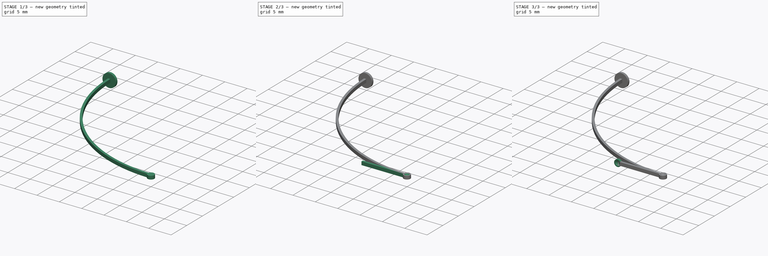
[diagram: build sequence overview — one tinted view per stage of 3, left to right]
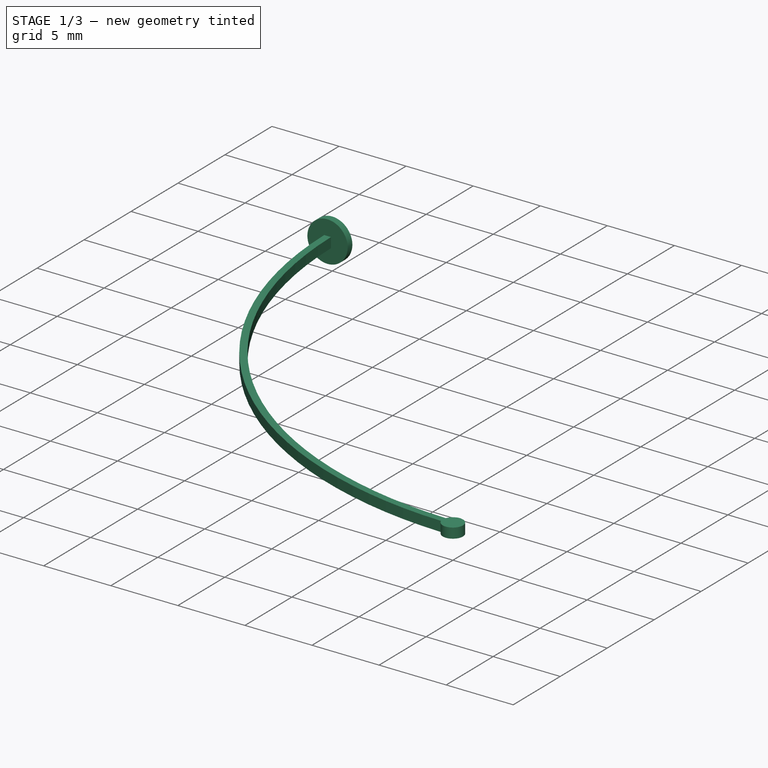
[diagram: stage 1 of 3 — iso view after this stage's code; geometry added in this stage tinted green]
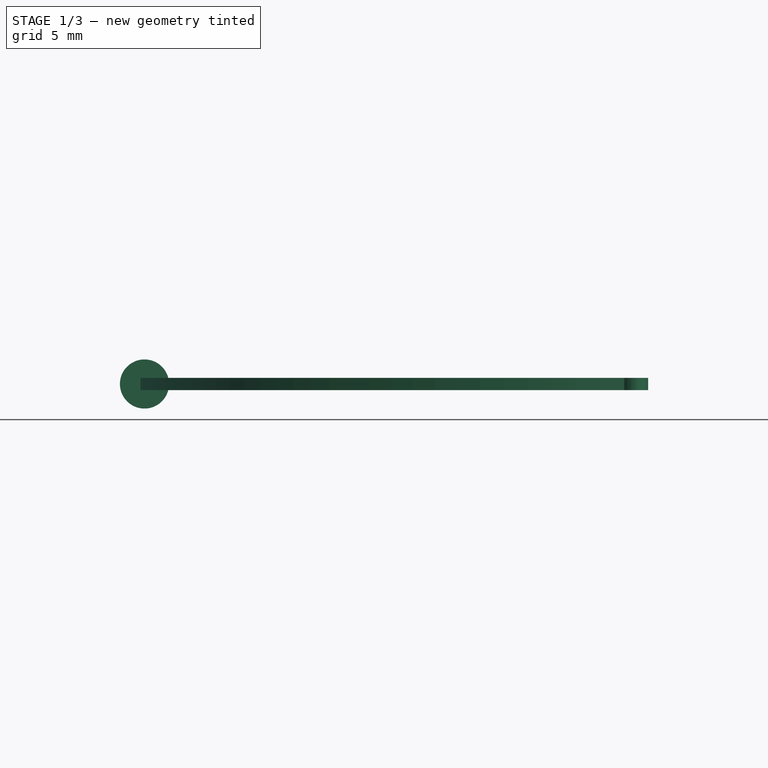
[diagram: stage 1 of 3 — front view after this stage's code; geometry added in this stage tinted green]
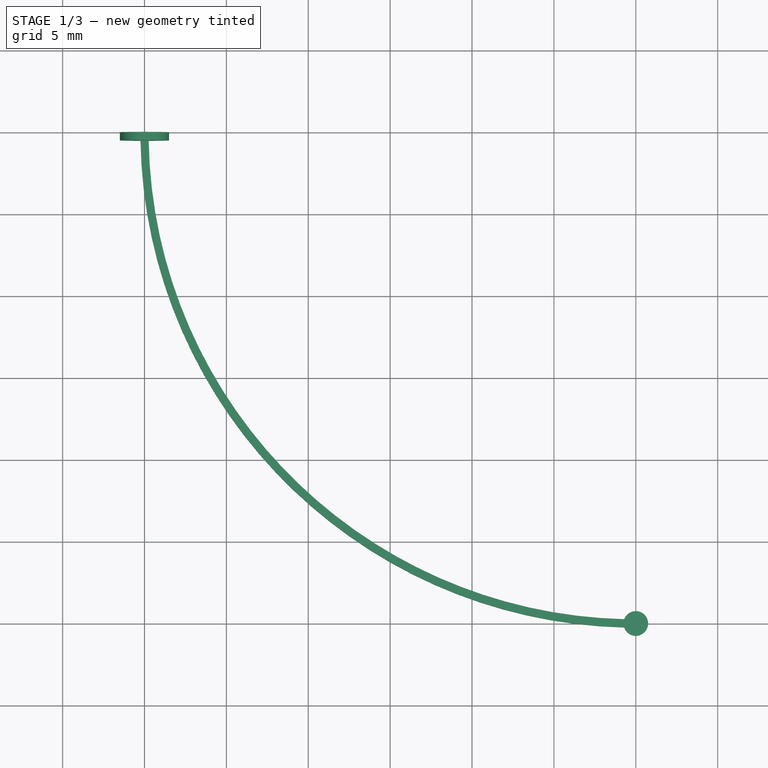
[diagram: stage 1 of 3 — top view after this stage's code; geometry added in this stage tinted green]
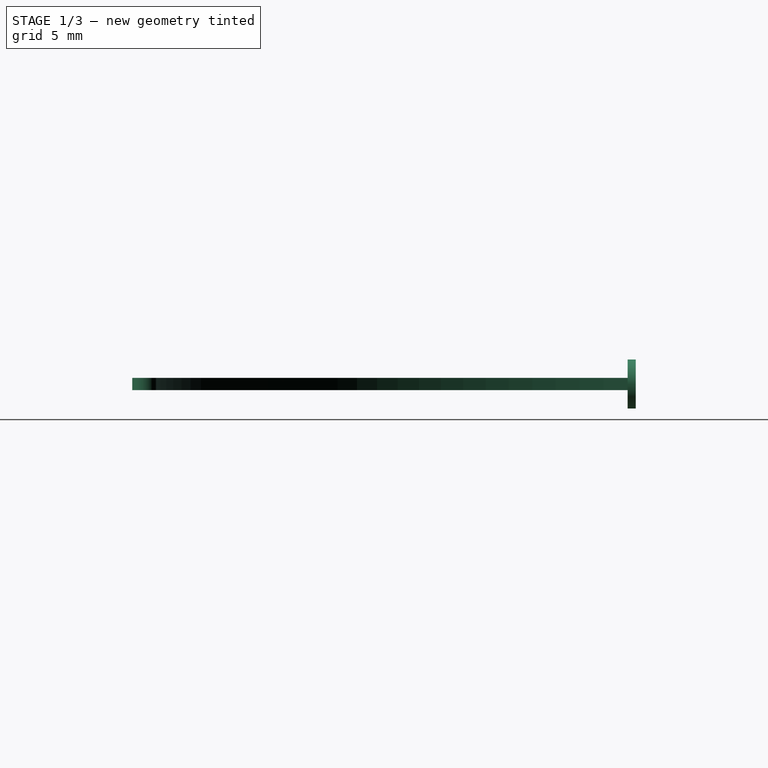
[diagram: stage 1 of 3 — right view after this stage's code; geometry added in this stage tinted green]
FCSTD DOCUMENT  (FreeCAD 0.20R29177 (Git))
Label: sla
License: All rights reserved
LicenseURL: http://en.wikipedia.org/wiki/All_rights_reserved
objects: Sketcher::SketchObject×4, PartDesign::Pad×4, PartDesign::Line×4, PartDesign::Point×2, PartDesign::SubtractiveSphere×2, Spreadsheet::Sheet×1, PartDesign::Plane×1, PartDesign::Body×1
note: 24 computed .brp shape members not serialized (recipe doc carries the construction recipe); baked Part::Feature solids carry a one-line shape summary decoded from their .brp

FEATURE [Spreadsheet::Sheet] Spreadsheet
  cells = A2=Design Parameters; A3=RefLength; B3(RefLength)==1mm; A4=ArmArcRadius; B4(ArmArcRadius)==30 * RefLength; A5=ArmWidth; B5(ArmWidth)==0.5 * RefLength; A6=ArmHeight; B6(ArmHeight)==0.75 * RefLength; A7=TipDatumPlaneOffsetX; B7(TipDatumPlaneOffsetX)==ArmArcRadius; A8=TipDatumPlaneOffsetY; B8(TipDatumPlaneOffsetY)==-ArmArcRadius; A9=ArmBaseDiameter; B9(ArmBaseDiameter)==3 * RefLength; A10=ArmBasePadLength; B10(ArmBasePadLength)==0.5 * RefLength; A11=BallDiameter; B11(BallDiameter)==1.25 * RefLength; A12=BallMargin; B12(BallMargin)==0.01 * RefLength; A13=BallCutoutDiameter; B13(BallCutoutDiameter)==BallDiameter + 2 * BallMargin; A14=BallDepth; B14(BallDepth)==0.25 * BallCutoutDiameter; A15=TipPlateDiameter; B15(TipPlateDiameter)==1.2 * BallDiameter; A16=TipPlateThickness; B16(TipPlateThickness)==ArmHeight; A17=BallCutoutCenterX; B17(BallCutoutCenterX)==ArmArcRadius; A18=BallCutoutCenterY; B18(BallCutoutCenterY)==-ArmArcRadius; A19=BallCutoutCenterZ; B19(BallCutoutCenterZ)==0.5 * ArmHeight + 0.5 * BallCutoutDiameter - BallDepth; A21=Ax4JointArmLength; B21(Ax4JointArmLength)==10 * RefLength; A22=Ax4JointPlateOffsetX; B22(Ax4JointPlateOffsetX)==ArmArcRadius - Ax4JointArmLength; A23=Ax4JointPlateOffsetY; B23(Ax4JointPlateOffsetY)==0 * RefLength; A24=Ax4JointPlateOffsetZ; B24(Ax4JointPlateOffsetZ)==ArmArcRadius; A25=Ax4BallCutoutCenterX; B25(Ax4BallCutoutCenterX)==ArmArcRadius - Ax4JointArmLength; A26=Ax4BallCutoutCenterY; B26(Ax4BallCutoutCenterY)==-(ArmArcRadius + 0.5 * ArmWidth - BallDepth + 0.5 * BallCutoutDiameter); A27=Ax4BallCutoutCenterZ; B27(Ax4BallCutoutCenterZ)==0 * RefLength
FEATURE [Sketcher::SketchObject] Sketch  label="ArmSketch"
  FullyConstrained = true
  MapMode = 5
  Support = -> [XY_Plane]
  expr: Constraints[16] = Spreadsheet.ArmWidth
  expr: Constraints[26] = Spreadsheet.TipPlateDiameter
  expr: Constraints[9] = Spreadsheet.ArmArcRadius
  sketch-geometry (10):
    g0: LineSegment StartX=-2.13e-14 StartY=4.41e-14 StartZ=0 EndX=-2.13e-14 EndY=-30 EndZ=0
    g1: LineSegment StartX=-2.13e-14 StartY=-30 StartZ=0 EndX=30 EndY=-30 EndZ=0
    g2: LineSegment StartX=-2.13e-14 StartY=4.41e-14 StartZ=0 EndX=30 EndY=4.41e-14 EndZ=0
    g3: LineSegment StartX=30 StartY=4.41e-14 StartZ=0 EndX=30 EndY=-30 EndZ=0
    g4: ArcOfCircle CenterX=30 CenterY=4.41e-14 CenterZ=0 NormalX=0 NormalY=0 NormalZ=1 AngleXU=0 Radius=30 StartAngle=3.14159 EndAngle=4.71239
    g5: LineSegment StartX=-0.25 StartY=4.41e-14 StartZ=0 EndX=-2.13e-14 EndY=4.41e-14 EndZ=0
    g6: LineSegment StartX=-2.13e-14 StartY=4.41e-14 StartZ=0 EndX=0.25 EndY=4.41e-14 EndZ=0
    g7: ArcOfCircle CenterX=30 CenterY=4.41e-14 CenterZ=0 NormalX=0 NormalY=0 NormalZ=1 AngleXU=0 Radius=30.25 StartAngle=3.14159 EndAngle=4.68892
    g8: ArcOfCircle CenterX=30 CenterY=4.41e-14 CenterZ=0 NormalX=0 NormalY=0 NormalZ=1 AngleXU=0 Radius=29.75 StartAngle=3.14159 EndAngle=4.68872
    g9: ArcOfCircle CenterX=30 CenterY=-30 CenterZ=0 NormalX=0 NormalY=0 NormalZ=1 AngleXU=0 Radius=0.75 StartAngle=3.46967 EndAngle=9.07313
  constraints (27):
    c: Vertical(g0)
    c: Coincident(g0,g1)
    c: Horizontal(g1)
    c: Horizontal(g2)
    c: Coincident(g2,g3)
    c: Vertical(g3)
    c: Coincident(g3,g1)
    c: Coincident(g4,g2)
    c: Coincident(g4,g1)
    c: Radius(g4) = 30
    c: Horizontal(g5)
    c: Coincident(g5,g6)
    c: Horizontal(g6)
    c: Equal(g5,g6)
    c: Coincident(g7,g2)
    c: Coincident(g8,g7)
    c: DistanceX(g5,g6) = 0.5
    c: Coincident(g2,g0)
    c: Coincident(g4,g0)
    c: Coincident(g0,g5)
    c: Coincident(g5,g-1)
    c: Coincident(g7,g5)
    c: Coincident(g8,g6)
    c: Coincident(g9,g1)
    c: Coincident(g9,g8)
    c: Coincident(g9,g7)
    c: Diameter(g9) = 1.5
FEATURE [PartDesign::Pad] Pad  label="ArmPad"
  Direction = (0,0,1)
  Length = 0.75
  Length2 = 10
  Midplane = true
  Profile = -> Sketch
  ReferenceAxis = -> Sketch [N_Axis]
  Type = 0
  expr: Length = Spreadsheet.ArmHeight
FEATURE [Sketcher::SketchObject] Sketch002  label="ArmBaseSketch"
  FullyConstrained = true
  MapMode = 5
  Placement = pos=(0,0,0) rot=(1,0,0;1.5708rad)
  Support = -> [XZ_Plane]
  expr: Constraints[1] = Spreadsheet.ArmBaseDiameter
  sketch-geometry (1):
    g0: Circle CenterX=0 CenterY=0 CenterZ=0 NormalX=0 NormalY=0 NormalZ=1 AngleXU=0 Radius=1.5
  constraints (2):
    c: Coincident(g0,g-1)
    c: Diameter(g0) = 3
FEATURE [PartDesign::Pad] Pad001  label="ArmBasePad"
  BaseFeature = -> Pad
  Direction = (0,-1,-2e-16)
  Length = 0.5
  Length2 = 10
  Profile = -> Sketch002
  ReferenceAxis = -> Sketch002 [N_Axis]
  Type = 0
  expr: Length = Spreadsheet.ArmBasePadLength
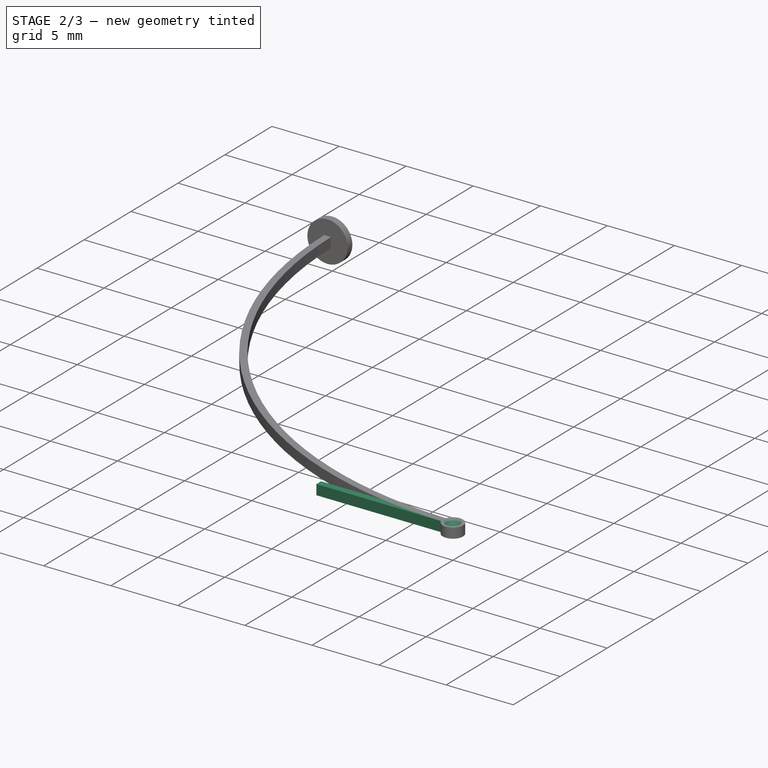
[diagram: stage 2 of 3 — iso view after this stage's code; geometry added in this stage tinted green]
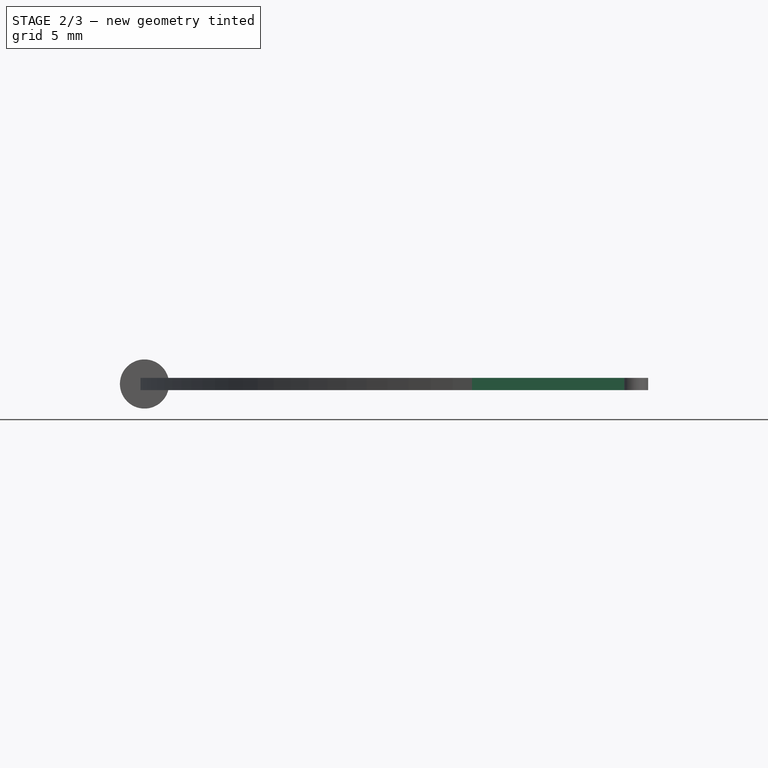
[diagram: stage 2 of 3 — front view after this stage's code; geometry added in this stage tinted green]
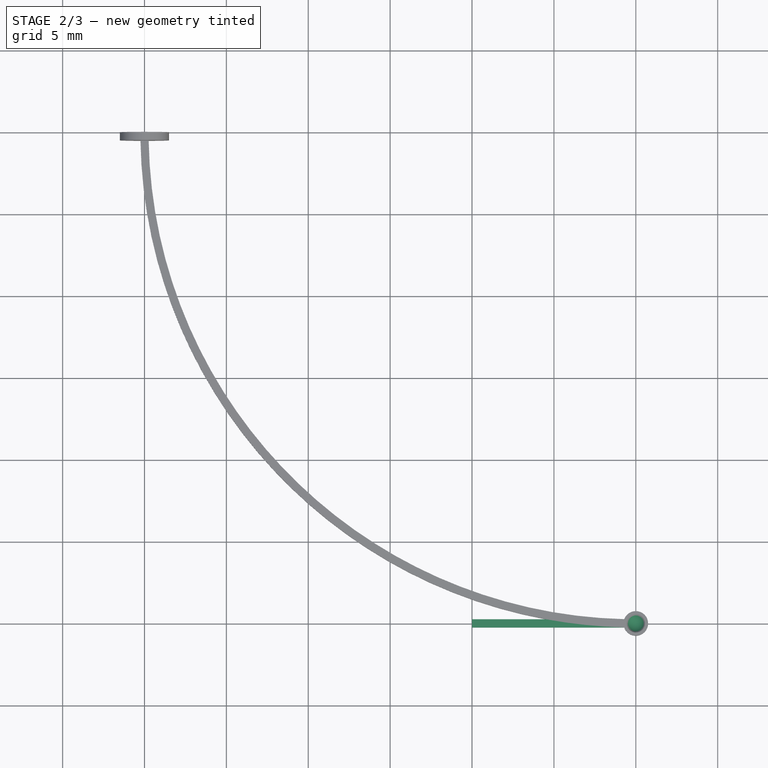
[diagram: stage 2 of 3 — top view after this stage's code; geometry added in this stage tinted green]
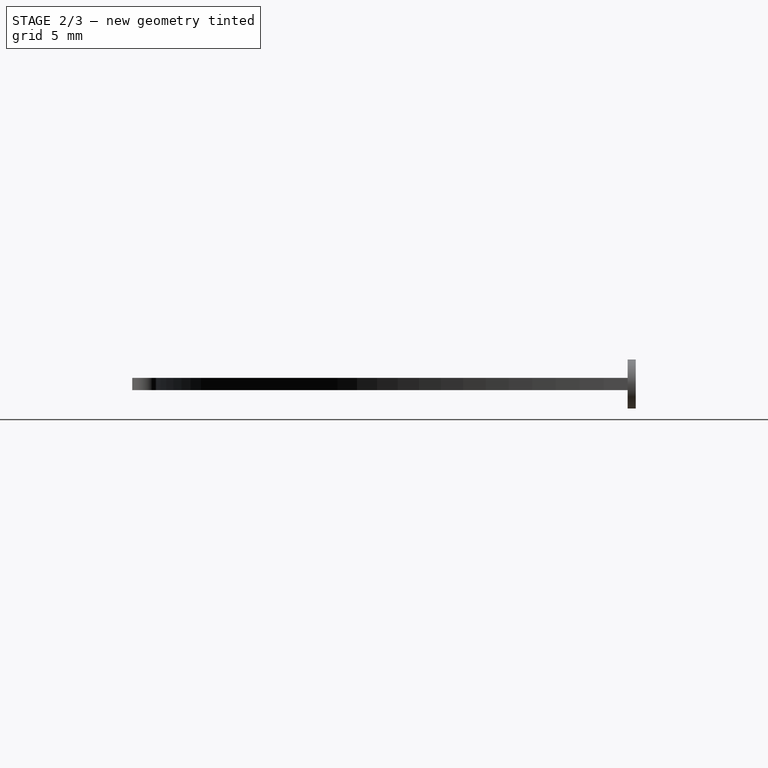
[diagram: stage 2 of 3 — right view after this stage's code; geometry added in this stage tinted green]
FEATURE [PartDesign::Point] DatumPoint  label="BallCutoutDatumPoint"
  AttacherType = Attacher::AttachEnginePoint
  AttachmentOffset = pos=(30,-30,0.6925) rot=(0,0,1;0rad)
  MapMode = 32
  Placement = pos=(30,-30,0.6925) rot=(0,0,1;0rad)
  Support = -> [XY_Plane]
  expr: .AttachmentOffset.Base.x = Spreadsheet.BallCutoutCenterX
  expr: .AttachmentOffset.Base.y = Spreadsheet.BallCutoutCenterY
  expr: .AttachmentOffset.Base.z = Spreadsheet.BallCutoutCenterZ
FEATURE [PartDesign::Line] DatumLine  label="HingeAxis1DatumLine"
  AttacherType = Attacher::AttachEngineLine
  Length = 20
  MapMode = 17
  Placement = pos=(30,-30,0.6925) rot=(1,0,0;1.5708rad)
  ResizeMode = 0
  Support = -> [DatumPoint]
FEATURE [PartDesign::Line] DatumLine001  label="HingeAxis2DatumLine"
  AttacherType = Attacher::AttachEngineLine
  Length = 20
  MapMode = 16
  Placement = pos=(30,-30,0.6925) rot=(0.57735,0.57735,0.57735;2.0944rad)
  ResizeMode = 0
  Support = -> [DatumPoint]
FEATURE [Sketcher::SketchObject] Sketch003  label="Ax3BeamSketch"
  FullyConstrained = true
  MapMode = 5
  Support = -> [XY_Plane]
  expr: Constraints[15] = Spreadsheet.ArmWidth
  expr: Constraints[16] = Spreadsheet.Ax4JointArmLength
  expr: Constraints[4] = Spreadsheet.ArmArcRadius
  expr: Constraints[5] = Spreadsheet.ArmArcRadius
  sketch-geometry (6):
    g0: LineSegment StartX=0 StartY=0 StartZ=0 EndX=30 EndY=0 EndZ=0
    g1: LineSegment StartX=30 StartY=0 StartZ=0 EndX=30 EndY=-30 EndZ=0
    g2: LineSegment StartX=20 StartY=-29.75 StartZ=0 EndX=30 EndY=-29.75 EndZ=0
    g3: LineSegment StartX=30 StartY=-30.25 StartZ=0 EndX=20 EndY=-30.25 EndZ=0
    g4: LineSegment StartX=20 StartY=-30.25 StartZ=0 EndX=20 EndY=-29.75 EndZ=0
    g5: LineSegment StartX=30 StartY=-29.75 StartZ=0 EndX=30 EndY=-30.25 EndZ=0
  constraints (17):
    c: Horizontal(g0)
    c: Coincident(g-1,g0)
    c: Vertical(g1)
    c: Coincident(g1,g0)
    c: DistanceX(g0,g0) = 30
    c: DistanceY(g1,g1) = 30
    c: Horizontal(g2)
    c: Horizontal(g3)
    c: Coincident(g3,g4)
    c: Vertical(g4)
    c: Coincident(g2,g4)
    c: Vertical(g5)
    c: Coincident(g5,g2)
    c: Coincident(g5,g3)
    c: Symmetric(g2,g3,g1)
    c: DistanceY(g4,g4) = 0.5
    c: DistanceX(g3,g3) = 10
FEATURE [PartDesign::Pad] Pad002
  BaseFeature = -> Pad001
  Direction = (0,0,1)
  Length = 0.75
  Length2 = 10
  Midplane = true
  Profile = -> Sketch003
  ReferenceAxis = -> Sketch003 [N_Axis]
  Type = 0
  expr: Length = Spreadsheet.ArmHeight
FEATURE [PartDesign::SubtractiveSphere] Sphere  label="BallCutoutSubtractiveSphere"
  Angle1 = -90
  Angle2 = 90
  Angle3 = 360
  AttacherType = Attacher::AttachEngine3D
  BaseFeature = -> Pad002
  MapMode = 1
  Placement = pos=(30,-30,0.6925) rot=(0,0,1;0rad)
  Radius = 0.635
  Support = -> [DatumPoint]
  expr: Radius = Spreadsheet.BallCutoutDiameter * 0.5
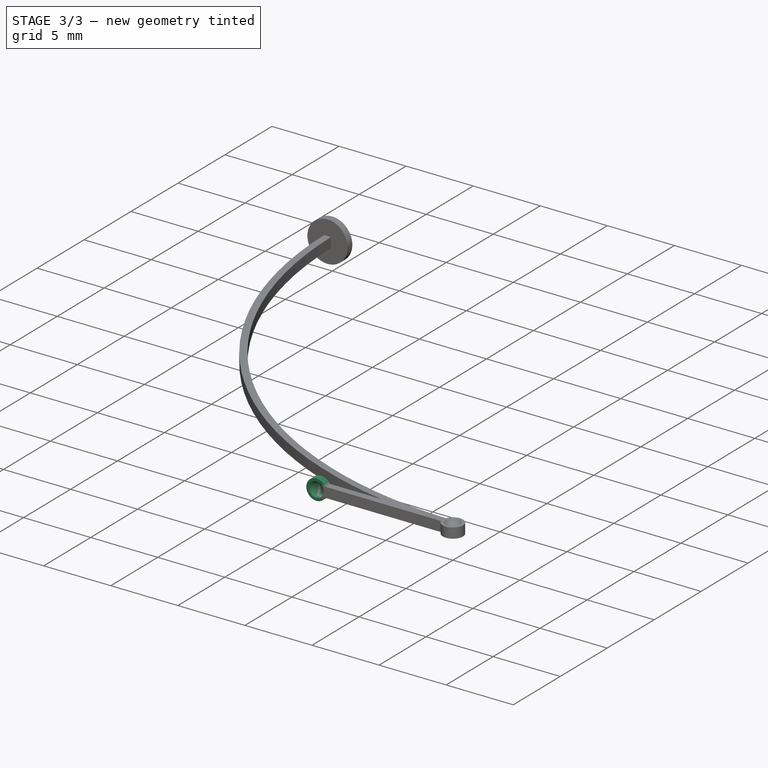
[diagram: stage 3 of 3 — iso view after this stage's code; geometry added in this stage tinted green]
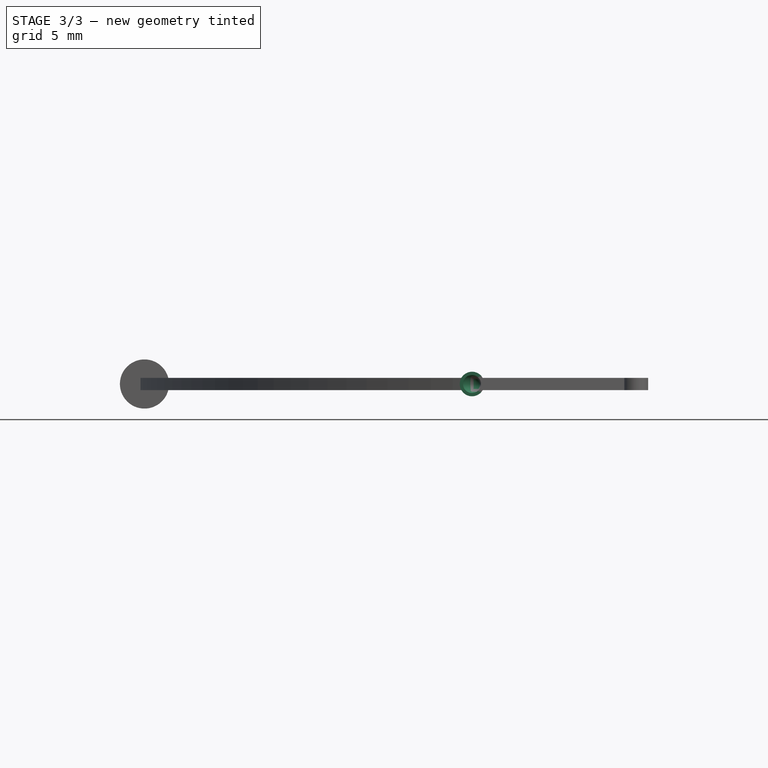
[diagram: stage 3 of 3 — front view after this stage's code; geometry added in this stage tinted green]
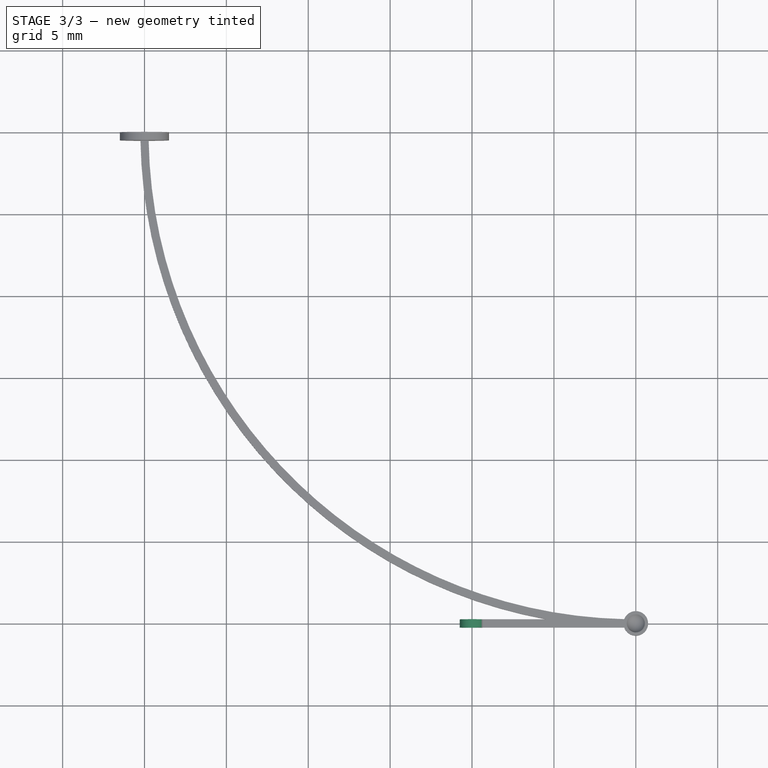
[diagram: stage 3 of 3 — top view after this stage's code; geometry added in this stage tinted green]
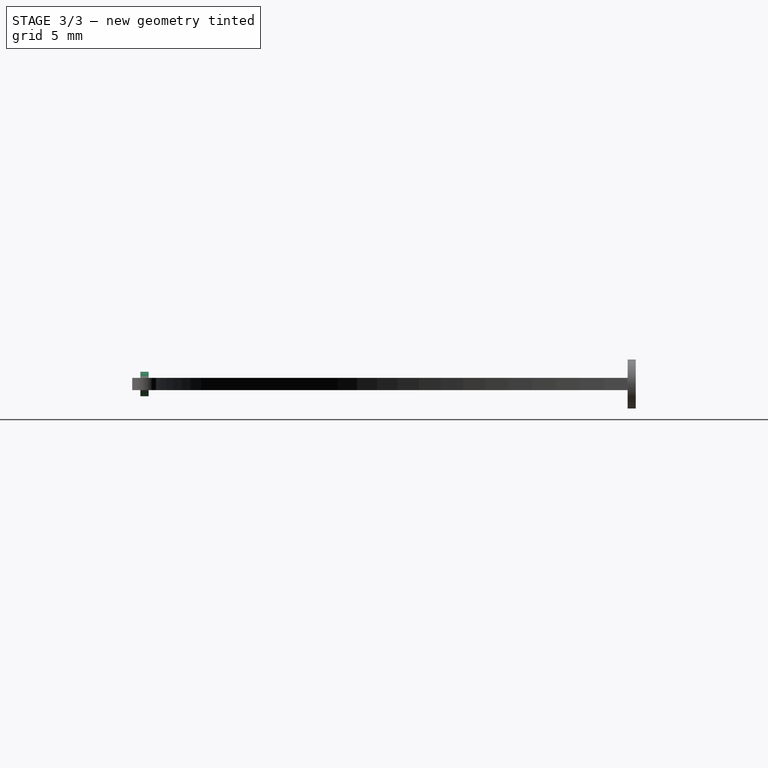
[diagram: stage 3 of 3 — right view after this stage's code; geometry added in this stage tinted green]
FEATURE [PartDesign::Plane] DatumPlane  label="Ax3JointPlateDatumPlane"
  AttachmentOffset = pos=(20,0,30) rot=(0,0,1;0rad)
  Length = 66.3039
  MapMode = 5
  Placement = pos=(20,-30,-6.7e-15) rot=(1,0,0;1.5708rad)
  ResizeMode = 0
  Support = -> [XZ_Plane]
  Width = 60.5589
  expr: .AttachmentOffset.Base.x = Spreadsheet.Ax4JointPlateOffsetX
  expr: .AttachmentOffset.Base.y = Spreadsheet.Ax4JointPlateOffsetY
  expr: .AttachmentOffset.Base.z = Spreadsheet.Ax4JointPlateOffsetZ
FEATURE [Sketcher::SketchObject] Sketch004  label="Ax3JointPlateSketch"
  FullyConstrained = true
  MapMode = 5
  Placement = pos=(20,-30,-6.7e-15) rot=(1,0,0;1.5708rad)
  Support = -> [DatumPlane]
  expr: Constraints[1] = Spreadsheet.TipPlateDiameter
  sketch-geometry (1):
    g0: Circle CenterX=0 CenterY=0 CenterZ=0 NormalX=0 NormalY=0 NormalZ=1 AngleXU=0 Radius=0.75
  constraints (2):
    c: Coincident(g0,g-1)
    c: Diameter(g0) = 1.5
FEATURE [PartDesign::Pad] Pad003  label="Ax3JointPlatePad"
  BaseFeature = -> Sphere
  Direction = (0,-1,-2e-16)
  Length = 0.5
  Length2 = 10
  Midplane = true
  Placement = pos=(30,-30,0.6925) rot=(0,0,1;0rad)
  Profile = -> Sketch004
  ReferenceAxis = -> Sketch004 [N_Axis]
  Type = 0
  expr: Length = Spreadsheet.ArmWidth
FEATURE [PartDesign::Point] DatumPoint001  label="Ax3BallCutoutDatumPoint"
  AttacherType = Attacher::AttachEnginePoint
  AttachmentOffset = pos=(20,-30.5675,0) rot=(0,0,1;0rad)
  MapMode = 32
  Placement = pos=(20,-30.5675,0) rot=(0,0,1;0rad)
  Support = -> [XY_Plane]
  expr: .AttachmentOffset.Base.x = Spreadsheet.Ax4BallCutoutCenterX
  expr: .AttachmentOffset.Base.y = Spreadsheet.Ax4BallCutoutCenterY
  expr: .AttachmentOffset.Base.z = Spreadsheet.Ax4BallCutoutCenterZ
FEATURE [PartDesign::SubtractiveSphere] Sphere001  label="Ax3BallCutoutSphere"
  Angle1 = -90
  Angle2 = 90
  Angle3 = 360
  AttacherType = Attacher::AttachEngine3D
  BaseFeature = -> Pad003
  MapMode = 2
  Placement = pos=(20,-30.5675,0) rot=(0,0,1;0rad)
  Radius = 0.635
  Support = -> [DatumPoint001]
  expr: Radius = 0.5 * Spreadsheet.BallCutoutDiameter
FEATURE [PartDesign::Line] DatumLine002  label="Ax3HingeAxis1DatumLine"
  AttacherType = Attacher::AttachEngineLine
  Length = 20
  MapMode = 16
  Placement = pos=(20,-30.5675,0) rot=(0.57735,0.57735,0.57735;2.0944rad)
  ResizeMode = 0
  Support = -> [DatumPoint001]
FEATURE [PartDesign::Line] DatumLine003  label="Ax3HingeAxis2DatumLine"
  AttacherType = Attacher::AttachEngineLine
  Length = 20
  MapMode = 18
  Placement = pos=(20,-30.5675,0) rot=(0,0,1;0rad)
  ResizeMode = 0
  Support = -> [DatumPoint001]
FEATURE [PartDesign::Body] Body
  Group = -> [Sketch,Pad,Sketch002,Pad001,Pad002,DatumPoint,Sphere,DatumLine,DatumLine001,Sketch003,DatumPlane,Sketch004,Pad003,DatumPoint001,Sphere001,DatumLine002,DatumLine003]
  Origin = -> Origin
  Tip = -> Sphere001
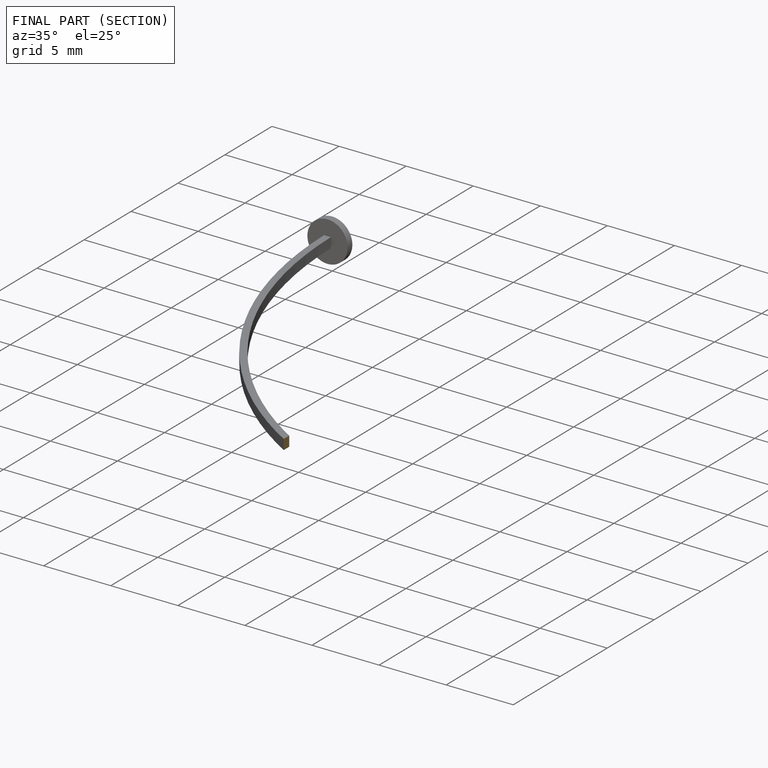
[diagram: finished part — half-section view (interior)]
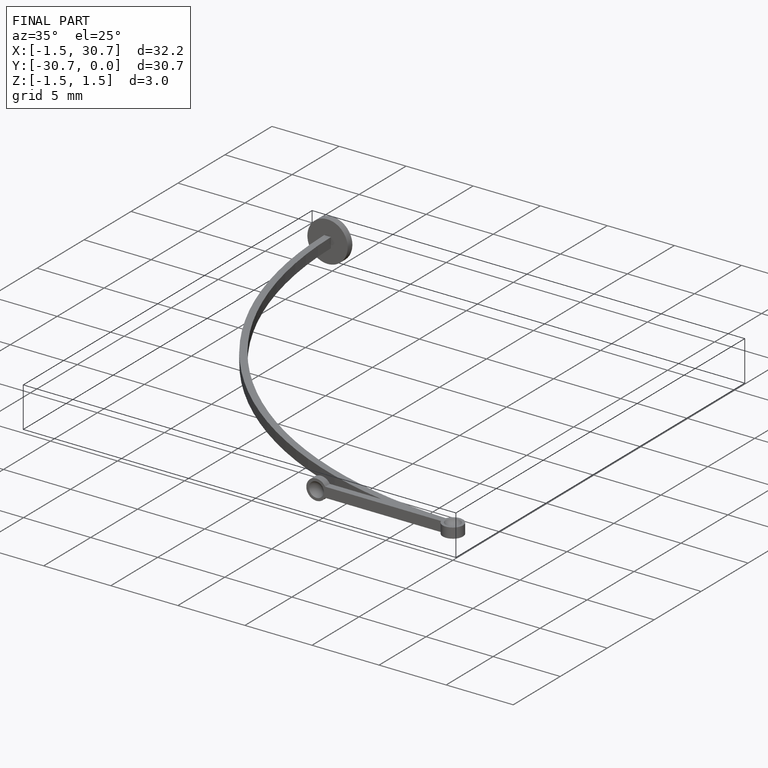
[diagram: finished part — iso view with bounding-box wireframe]
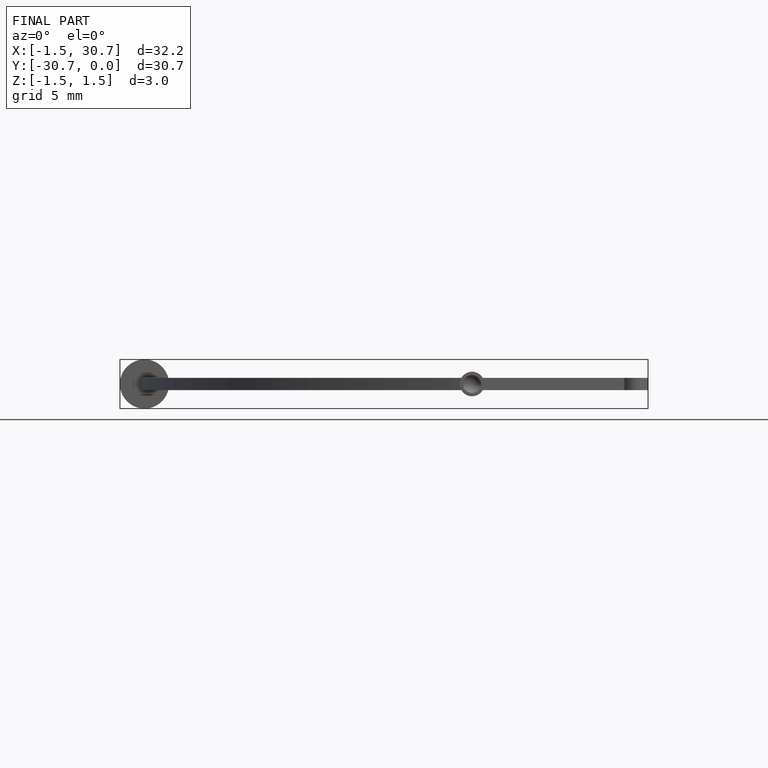
[diagram: finished part — front view with bounding-box wireframe]
